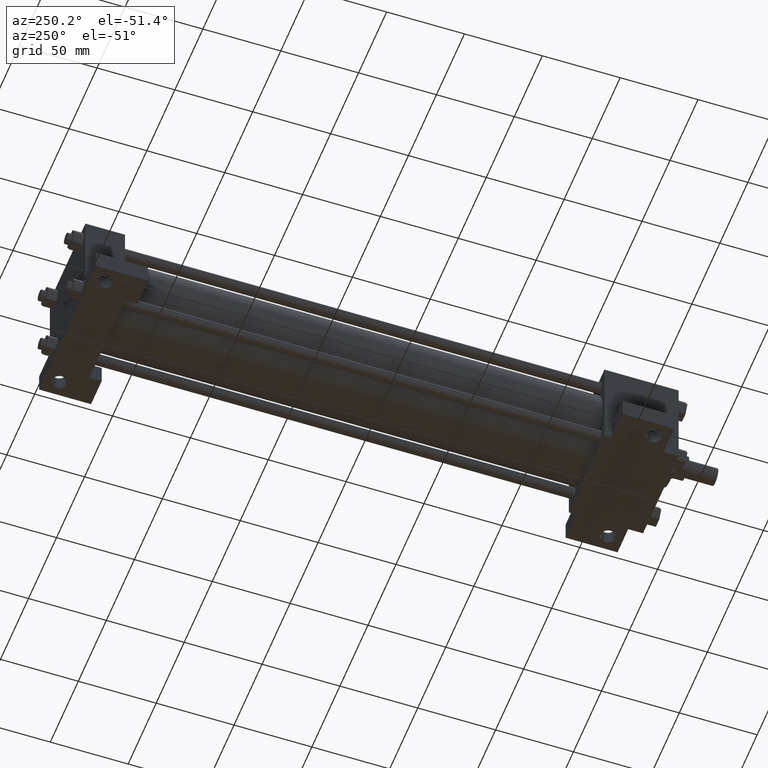
[diagram: clean part render]
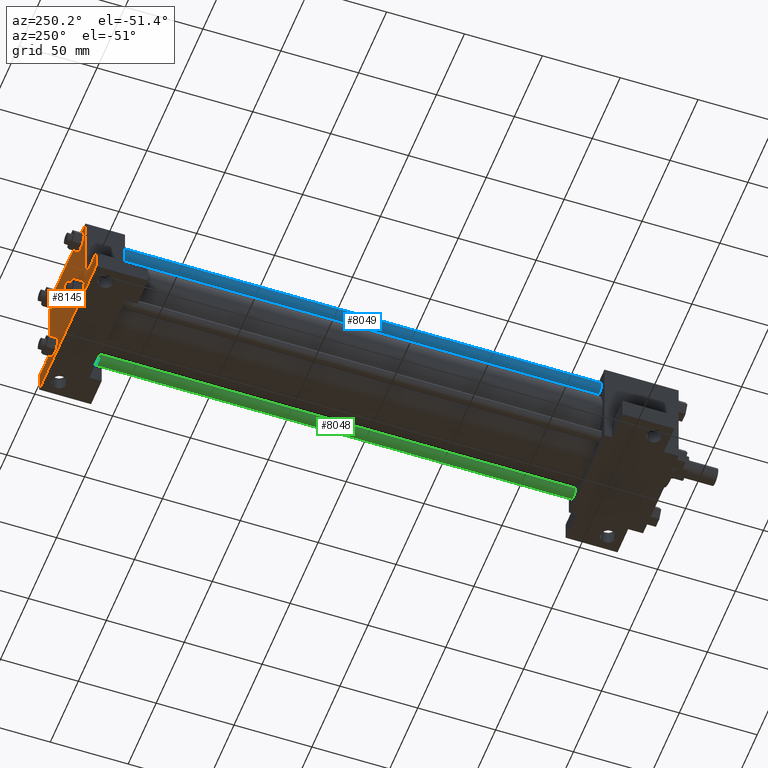
[diagram: same view with three faces highlighted in distinct colors, each labeled with its STEP entity id]
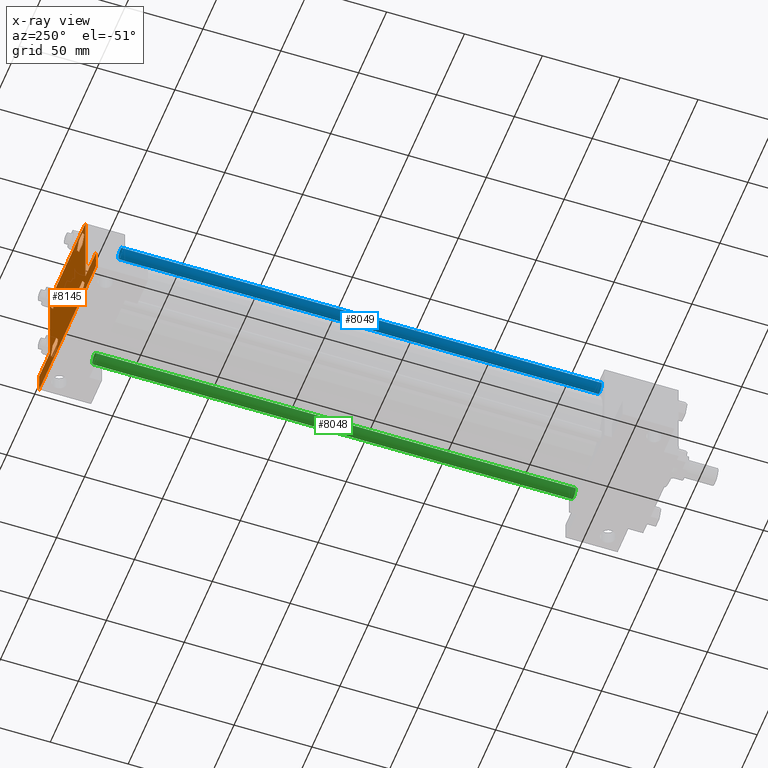
[diagram: x-ray of the same camera — body ghosted, the three highlighted faces saturated]
A machine part, auxiliary view with three faces highlighted in distinct colors.
The next image is the same camera in x-ray (body ghosted, the three faces saturated) — at least one of them is partly hidden behind the body in this view.
Their STEP definitions:

[orange] entity #8145 — the highlighted planar face has unit normal (0, -1, 0).
#4760=VERTEX_POINT('',#4761);
#4761=CARTESIAN_POINT('',(-2.016009347E+001,3.968750000E+002,-1.781175426E+001));
#4762=EDGE_CURVE('',#4767,#4760,#4763,.T.);
#4763=LINE('',#4764,#4765);
#4764=CARTESIAN_POINT('',(-1.695219677E+001,3.968750000E+002,-2.336800000E+001));
#4765=VECTOR('',#4766,1.0E+000);
#4766=DIRECTION('',(-5.01129111258307E-001,0.0E+000,
   8.65372528943148E-001));
#4767=VERTEX_POINT('',#4768);
#4768=CARTESIAN_POINT('',(-1.695219677E+001,3.968750000E+002,-2.336800000E+001));
#4792=EDGE_CURVE('',#4797,#4767,#4793,.T.);
#4793=LINE('',#4794,#4795);
#4794=CARTESIAN_POINT('',(-2.016009347E+001,3.968750000E+002,-2.892424574E+001));
#4795=VECTOR('',#4796,1.0E+000);
#4796=DIRECTION('',(5.01129111258308E-001,0.0E+000,8.65372528943147E-001));
#4797=VERTEX_POINT('',#4798);
#4798=CARTESIAN_POINT('',(-2.016009347E+001,3.968750000E+002,-2.892424574E+001));
#4822=EDGE_CURVE('',#4827,#4797,#4823,.T.);
#4823=LINE('',#4824,#4825);
#4824=CARTESIAN_POINT('',(-2.657590653E+001,3.968750000E+002,-2.892424574E+001));
#4825=VECTOR('',#4826,1.0E+000);
#4826=DIRECTION('',(1.0E+000,0.0E+000,0.0E+000));
#4827=VERTEX_POINT('',#4828);
#4828=CARTESIAN_POINT('',(-2.657590653E+001,3.968750000E+002,-2.892424574E+001));
#4852=EDGE_CURVE('',#4857,#4827,#4853,.T.);
#4853=LINE('',#4854,#4855);
#4854=CARTESIAN_POINT('',(-2.978380323E+001,3.968750000E+002,-2.336800000E+001));
#4855=VECTOR('',#4856,1.0E+000);
#4856=DIRECTION('',(5.01129111258307E-001,0.0E+000,
   -8.65372528943148E-001));
#4857=VERTEX_POINT('',#4858);
#4858=CARTESIAN_POINT('',(-2.978380323E+001,3.968750000E+002,-2.336800000E+001));
#4882=EDGE_CURVE('',#4887,#4857,#4883,.T.);
#4883=LINE('',#4884,#4885);
#4884=CARTESIAN_POINT('',(-2.657590653E+001,3.968750000E+002,-1.781175426E+001));
#4885=VECTOR('',#4886,1.0E+000);
#4886=DIRECTION('',(-5.01129111258308E-001,0.0E+000,
   -8.65372528943147E-001));
#4887=VERTEX_POINT('',#4888);
#4888=CARTESIAN_POINT('',(-2.657590653E+001,3.968750000E+002,-1.781175426E+001));
#4910=EDGE_CURVE('',#4760,#4887,#4911,.T.);
#4911=LINE('',#4912,#4913);
#4912=CARTESIAN_POINT('',(-2.016009347E+001,3.968750000E+002,-1.781175426E+001));
#4913=VECTOR('',#4914,1.0E+000);
#4914=DIRECTION('',(-1.0E+000,0.0E+000,0.0E+000));
#4991=VERTEX_POINT('',#4992);
#4992=CARTESIAN_POINT('',(-2.657590653E+001,3.968750000E+002,1.781175426E+001));
#4993=EDGE_CURVE('',#4998,#4991,#4994,.T.);
#4994=LINE('',#4995,#4996);
#4995=CARTESIAN_POINT('',(-2.978380323E+001,3.968750000E+002,2.336800000E+001));
#4996=VECTOR('',#4997,1.0E+000);
#4997=DIRECTION('',(5.01129111258307E-001,0.0E+000,
   -8.65372528943148E-001));
#4998=VERTEX_POINT('',#4999);
#4999=CARTESIAN_POINT('',(-2.978380323E+001,3.968750000E+002,2.336800000E+001));
#5023=EDGE_CURVE('',#5028,#4998,#5024,.T.);
#5024=LINE('',#5025,#5026);
#5025=CARTESIAN_POINT('',(-2.657590653E+001,3.968750000E+002,2.892424574E+001));
#5026=VECTOR('',#5027,1.0E+000);
#5027=DIRECTION('',(-5.01129111258308E-001,0.0E+000,
   -8.65372528943147E-001));
#5028=VERTEX_POINT('',#5029);
#5029=CARTESIAN_POINT('',(-2.657590653E+001,3.968750000E+002,2.892424574E+001));
#5053=EDGE_CURVE('',#5058,#5028,#5054,.T.);
#5054=LINE('',#5055,#5056);
#5055=CARTESIAN_POINT('',(-2.016009347E+001,3.968750000E+002,2.892424574E+001));
#5056=VECTOR('',#5057,1.0E+000);
#5057=DIRECTION('',(-1.0E+000,0.0E+000,0.0E+000));
#5058=VERTEX_POINT('',#5059);
#5059=CARTESIAN_POINT('',(-2.016009347E+001,3.968750000E+002,2.892424574E+001));
#5083=EDGE_CURVE('',#5088,#5058,#5084,.T.);
#5084=LINE('',#5085,#5086);
#5085=CARTESIAN_POINT('',(-1.695219677E+001,3.968750000E+002,2.336800000E+001));
#5086=VECTOR('',#5087,1.0E+000);
#5087=DIRECTION('',(-5.01129111258307E-001,0.0E+000,
   8.65372528943148E-001));
#5088=VERTEX_POINT('',#5089);
#5089=CARTESIAN_POINT('',(-1.695219677E+001,3.968750000E+002,2.336800000E+001));
#5113=EDGE_CURVE('',#5118,#5088,#5114,.T.);
#5114=LINE('',#5115,#5116);
#5115=CARTESIAN_POINT('',(-2.016009347E+001,3.968750000E+002,1.781175426E+001));
#5116=VECTOR('',#5117,1.0E+000);
#5117=DIRECTION('',(5.01129111258308E-001,0.0E+000,8.65372528943147E-001));
#5118=VERTEX_POINT('',#5119);
#5119=CARTESIAN_POINT('',(-2.016009347E+001,3.968750000E+002,1.781175426E+001));
#5141=EDGE_CURVE('',#4991,#5118,#5142,.T.);
#5142=LINE('',#5143,#5144);
#5143=CARTESIAN_POINT('',(-2.657590653E+001,3.968750000E+002,1.781175426E+001));
#5144=VECTOR('',#5145,1.0E+000);
#5145=DIRECTION('',(1.0E+000,0.0E+000,0.0E+000));
#5222=VERTEX_POINT('',#5223);
#5223=CARTESIAN_POINT('',(2.016009347E+001,3.968750000E+002,1.781175426E+001));
#5224=EDGE_CURVE('',#5229,#5222,#5225,.T.);
#5225=LINE('',#5226,#5227);
#5226=CARTESIAN_POINT('',(1.695219677E+001,3.968750000E+002,2.336800000E+001));
#5227=VECTOR('',#5228,1.0E+000);
#5228=DIRECTION('',(5.01129111258307E-001,0.0E+000,
   -8.65372528943148E-001));
#5229=VERTEX_POINT('',#5230);
#5230=CARTESIAN_POINT('',(1.695219677E+001,3.968750000E+002,2.336800000E+001));
#5254=EDGE_CURVE('',#5259,#5229,#5255,.T.);
#5255=LINE('',#5256,#5257);
#5256=CARTESIAN_POINT('',(2.016009347E+001,3.968750000E+002,2.892424574E+001));
#5257=VECTOR('',#5258,1.0E+000);
#5258=DIRECTION('',(-5.01129111258308E-001,0.0E+000,
   -8.65372528943147E-001));
#5259=VERTEX_POINT('',#5260);
#5260=CARTESIAN_POINT('',(2.016009347E+001,3.968750000E+002,2.892424574E+001));
#5284=EDGE_CURVE('',#5289,#5259,#5285,.T.);
#5285=LINE('',#5286,#5287);
#5286=CARTESIAN_POINT('',(2.657590653E+001,3.968750000E+002,2.892424574E+001));
#5287=VECTOR('',#5288,1.0E+000);
#5288=DIRECTION('',(-1.0E+000,0.0E+000,0.0E+000));
#5289=VERTEX_POINT('',#5290);
#5290=CARTESIAN_POINT('',(2.657590653E+001,3.968750000E+002,2.892424574E+001));
#5314=EDGE_CURVE('',#5319,#5289,#5315,.T.);
#5315=LINE('',#5316,#5317);
#5316=CARTESIAN_POINT('',(2.978380323E+001,3.968750000E+002,2.336800000E+001));
#5317=VECTOR('',#5318,1.0E+000);
#5318=DIRECTION('',(-5.01129111258307E-001,0.0E+000,
   8.65372528943148E-001));
#5319=VERTEX_POINT('',#5320);
#5320=CARTESIAN_POINT('',(2.978380323E+001,3.968750000E+002,2.336800000E+001));
#5344=EDGE_CURVE('',#5349,#5319,#5345,.T.);
#5345=LINE('',#5346,#5347);
#5346=CARTESIAN_POINT('',(2.657590653E+001,3.968750000E+002,1.781175426E+001));
#5347=VECTOR('',#5348,1.0E+000);
#5348=DIRECTION('',(5.01129111258308E-001,0.0E+000,8.65372528943147E-001));
#5349=VERTEX_POINT('',#5350);
#5350=CARTESIAN_POINT('',(2.657590653E+001,3.968750000E+002,1.781175426E+001));
#5372=EDGE_CURVE('',#5222,#5349,#5373,.T.);
#5373=LINE('',#5374,#5375);
#5374=CARTESIAN_POINT('',(2.016009347E+001,3.968750000E+002,1.781175426E+001));
#5375=VECTOR('',#5376,1.0E+000);
#5376=DIRECTION('',(1.0E+000,0.0E+000,0.0E+000));
#5453=VERTEX_POINT('',#5454);
#5454=CARTESIAN_POINT('',(2.657590653E+001,3.968750000E+002,-1.781175426E+001));
#5455=EDGE_CURVE('',#5460,#5453,#5456,.T.);
#5456=LINE('',#5457,#5458);
#5457=CARTESIAN_POINT('',(2.978380323E+001,3.968750000E+002,-2.336800000E+001));
#5458=VECTOR('',#5459,1.0E+000);
#5459=DIRECTION('',(-5.01129111258307E-001,0.0E+000,
   8.65372528943148E-001));
#5460=VERTEX_POINT('',#5461);
#5461=CARTESIAN_POINT('',(2.978380323E+001,3.968750000E+002,-2.336800000E+001));
#5485=EDGE_CURVE('',#5490,#5460,#5486,.T.);
#5486=LINE('',#5487,#5488);
#5487=CARTESIAN_POINT('',(2.657590653E+001,3.968750000E+002,-2.892424574E+001));
#5488=VECTOR('',#5489,1.0E+000);
#5489=DIRECTION('',(5.01129111258308E-001,0.0E+000,8.65372528943147E-001));
#5490=VERTEX_POINT('',#5491);
#5491=CARTESIAN_POINT('',(2.657590653E+001,3.968750000E+002,-2.892424574E+001));
#5515=EDGE_CURVE('',#5520,#5490,#5516,.T.);
#5516=LINE('',#5517,#5518);
#5517=CARTESIAN_POINT('',(2.016009347E+001,3.968750000E+002,-2.892424574E+001));
#5518=VECTOR('',#5519,1.0E+000);
#5519=DIRECTION('',(1.0E+000,0.0E+000,0.0E+000));
#5520=VERTEX_POINT('',#5521);
#5521=CARTESIAN_POINT('',(2.016009347E+001,3.968750000E+002,-2.892424574E+001));
#5545=EDGE_CURVE('',#5550,#5520,#5546,.T.);
#5546=LINE('',#5547,#5548);
#5547=CARTESIAN_POINT('',(1.695219677E+001,3.968750000E+002,-2.336800000E+001));
#5548=VECTOR('',#5549,1.0E+000);
#5549=DIRECTION('',(5.01129111258307E-001,0.0E+000,
   -8.65372528943148E-001));
#5550=VERTEX_POINT('',#5551);
#5551=CARTESIAN_POINT('',(1.695219677E+001,3.968750000E+002,-2.336800000E+001));
#5575=EDGE_CURVE('',#5580,#5550,#5576,.T.);
#5576=LINE('',#5577,#5578);
#5577=CARTESIAN_POINT('',(2.016009347E+001,3.968750000E+002,-1.781175426E+001));
#5578=VECTOR('',#5579,1.0E+000);
#5579=DIRECTION('',(-5.01129111258308E-001,0.0E+000,
   -8.65372528943147E-001));
#5580=VERTEX_POINT('',#5581);
#5581=CARTESIAN_POINT('',(2.016009347E+001,3.968750000E+002,-1.781175426E+001));
#5603=EDGE_CURVE('',#5453,#5580,#5604,.T.);
#5604=LINE('',#5605,#5606);
#5605=CARTESIAN_POINT('',(2.657590653E+001,3.968750000E+002,-1.781175426E+001));
#5606=VECTOR('',#5607,1.0E+000);
#5607=DIRECTION('',(-1.0E+000,0.0E+000,0.0E+000));
#6047=VERTEX_POINT('',#6048);
#6048=CARTESIAN_POINT('',(-5.080000000E+001,3.968750000E+002,-3.175000000E+001));
#6049=EDGE_CURVE('',#6054,#6047,#6050,.T.);
#6050=LINE('',#6051,#6052);
#6051=CARTESIAN_POINT('',(3.175000000E+001,3.968750000E+002,-3.175000000E+001));
#6052=VECTOR('',#6053,1.0E+000);
#6053=DIRECTION('',(-1.0E+000,0.0E+000,0.0E+000));
#6054=VERTEX_POINT('',#6055);
#6055=CARTESIAN_POINT('',(5.080000000E+001,3.968750000E+002,-3.175000000E+001));
#6098=VERTEX_POINT('',#6100);
#6100=CARTESIAN_POINT('',(3.175000000E+001,3.968750000E+002,-1.905000000E+001));
#6117=VERTEX_POINT('',#6118);
#6118=CARTESIAN_POINT('',(5.080000000E+001,3.968750000E+002,-1.905000000E+001));
#6119=EDGE_CURVE('',#6117,#6098,#6120,.T.);
#6120=LINE('',#6121,#6122);
#6121=CARTESIAN_POINT('',(5.080000000E+001,3.968750000E+002,-1.905000000E+001));
#6122=VECTOR('',#6123,1.0E+000);
#6123=DIRECTION('',(-1.0E+000,0.0E+000,0.0E+000));
#6140=EDGE_CURVE('',#6117,#6054,#6141,.T.);
#6141=LINE('',#6142,#6143);
#6142=CARTESIAN_POINT('',(5.080000000E+001,3.968750000E+002,-1.905000000E+001));
#6143=VECTOR('',#6144,1.0E+000);
#6144=DIRECTION('',(0.0E+000,0.0E+000,-1.0E+000));
#6197=VERTEX_POINT('',#6199);
#6199=CARTESIAN_POINT('',(-3.175000000E+001,3.968750000E+002,-1.905000000E+001));
#6201=EDGE_CURVE('',#6206,#6197,#6202,.T.);
#6202=LINE('',#6203,#6204);
#6203=CARTESIAN_POINT('',(-5.080000000E+001,3.968750000E+002,-1.905000000E+001));
#6204=VECTOR('',#6205,1.0E+000);
#6205=DIRECTION('',(1.0E+000,0.0E+000,0.0E+000));
#6206=VERTEX_POINT('',#6207);
#6207=CARTESIAN_POINT('',(-5.080000000E+001,3.968750000E+002,-1.905000000E+001));
#6239=EDGE_CURVE('',#6206,#6047,#6240,.T.);
#6240=LINE('',#6241,#6242);
#6241=CARTESIAN_POINT('',(-5.080000000E+001,3.968750000E+002,-1.905000000E+001));
#6242=VECTOR('',#6243,1.0E+000);
#6243=DIRECTION('',(0.0E+000,0.0E+000,-1.0E+000));
#6281=FACE_OUTER_BOUND('',#6286,.T.);
#6282=FACE_BOUND('',#6287,.T.);
#6283=FACE_BOUND('',#6288,.T.);
#6284=FACE_BOUND('',#6289,.T.);
#6285=FACE_BOUND('',#6290,.T.);
#6286=EDGE_LOOP('',(#6291,#6292,#6293,#6294,#6295,#6296));
#6287=EDGE_LOOP('',(#6297,#6298,#6299,#6300,#6301,#6302));
#6288=EDGE_LOOP('',(#6303,#6304,#6305,#6306,#6307,#6308));
#6289=EDGE_LOOP('',(#6309,#6310,#6311,#6312,#6313,#6314));
#6290=EDGE_LOOP('',(#6315,#6316,#6317,#6318,#6319,#6320,#6321,#6322));
#6291=ORIENTED_EDGE('',*,*,#4762,.T.);
#6292=ORIENTED_EDGE('',*,*,#4910,.T.);
#6293=ORIENTED_EDGE('',*,*,#4882,.T.);
#6294=ORIENTED_EDGE('',*,*,#4852,.T.);
#6295=ORIENTED_EDGE('',*,*,#4822,.T.);
#6296=ORIENTED_EDGE('',*,*,#4792,.T.);
#6297=ORIENTED_EDGE('',*,*,#4993,.T.);
#6298=ORIENTED_EDGE('',*,*,#5141,.T.);
#6299=ORIENTED_EDGE('',*,*,#5113,.T.);
#6300=ORIENTED_EDGE('',*,*,#5083,.T.);
#6301=ORIENTED_EDGE('',*,*,#5053,.T.);
#6302=ORIENTED_EDGE('',*,*,#5023,.T.);
#6303=ORIENTED_EDGE('',*,*,#5224,.T.);
#6304=ORIENTED_EDGE('',*,*,#5372,.T.);
#6305=ORIENTED_EDGE('',*,*,#5344,.T.);
#6306=ORIENTED_EDGE('',*,*,#5314,.T.);
#6307=ORIENTED_EDGE('',*,*,#5284,.T.);
#6308=ORIENTED_EDGE('',*,*,#5254,.T.);
#6309=ORIENTED_EDGE('',*,*,#5455,.T.);
#6310=ORIENTED_EDGE('',*,*,#5603,.T.);
#6311=ORIENTED_EDGE('',*,*,#5575,.T.);
#6312=ORIENTED_EDGE('',*,*,#5545,.T.);
#6313=ORIENTED_EDGE('',*,*,#5515,.T.);
#6314=ORIENTED_EDGE('',*,*,#5485,.T.);
#6315=ORIENTED_EDGE('',*,*,#6140,.T.);
#6316=ORIENTED_EDGE('',*,*,#6049,.T.);
#6317=ORIENTED_EDGE('',*,*,#6239,.F.);
#6318=ORIENTED_EDGE('',*,*,#6201,.T.);
#6319=ORIENTED_EDGE('',*,*,#6323,.F.);
#6320=ORIENTED_EDGE('',*,*,#6330,.F.);
#6321=ORIENTED_EDGE('',*,*,#6337,.F.);
#6322=ORIENTED_EDGE('',*,*,#6119,.F.);
#6323=EDGE_CURVE('',#6328,#6197,#6324,.T.);
#6324=LINE('',#6325,#6326);
#6325=CARTESIAN_POINT('',(-3.175000000E+001,3.968750000E+002,3.175000000E+001));
#6326=VECTOR('',#6327,1.0E+000);
#6327=DIRECTION('',(0.0E+000,0.0E+000,-1.0E+000));
#6328=VERTEX_POINT('',#6329);
#6329=CARTESIAN_POINT('',(-3.175000000E+001,3.968750000E+002,3.175000000E+001));
#6330=EDGE_CURVE('',#6335,#6328,#6331,.T.);
#6331=LINE('',#6332,#6333);
#6332=CARTESIAN_POINT('',(3.175000000E+001,3.968750000E+002,3.175000000E+001));
#6333=VECTOR('',#6334,1.0E+000);
#6334=DIRECTION('',(-1.0E+000,0.0E+000,0.0E+000));
#6335=VERTEX_POINT('',#6336);
#6336=CARTESIAN_POINT('',(3.175000000E+001,3.968750000E+002,3.175000000E+001));
#6337=EDGE_CURVE('',#6098,#6335,#6338,.T.);
#6338=LINE('',#6339,#6340);
#6339=CARTESIAN_POINT('',(3.175000000E+001,3.968750000E+002,-3.175000000E+001));
#6340=VECTOR('',#6341,1.0E+000);
#6341=DIRECTION('',(0.0E+000,0.0E+000,1.0E+000));
#6342=PLANE('',#6343);
#6343=AXIS2_PLACEMENT_3D('',#6344,#6345,#6346);
#6344=CARTESIAN_POINT('',(3.175000000E+001,3.968750000E+002,-3.175000000E+001));
#6345=DIRECTION('',(0.0E+000,-1.0E+000,0.0E+000));
#6346=DIRECTION('',(0.0E+000,0.0E+000,-1.0E+000));
#8145=ADVANCED_FACE('',(#6281,#6282,#6283,#6284,#6285),#6342,.F.);

[blue] entity #8049 — the highlighted cylindrical surface (bore or boss wall) has radius 3.5687 mm, axis along (0, -1, 0).
#509=EDGE_CURVE('',#515,#515,#510,.T.);
#510=CIRCLE('',#511,3.568700000E+000);
#511=AXIS2_PLACEMENT_3D('',#512,#513,#514);
#512=CARTESIAN_POINT('',(-2.336800000E+001,6.350000000E+001,2.336800000E+001));
#513=DIRECTION('',(0.0E+000,1.0E+000,0.0E+000));
#514=DIRECTION('',(-1.0E+000,0.0E+000,0.0E+000));
#515=VERTEX_POINT('',#516);
#516=CARTESIAN_POINT('',(-2.693670000E+001,6.350000000E+001,2.336800000E+001));
#2833=FACE_OUTER_BOUND('',#2835,.T.);
#2834=FACE_BOUND('',#2836,.T.);
#2835=EDGE_LOOP('',(#2837));
#2836=EDGE_LOOP('',(#2838));
#2837=ORIENTED_EDGE('',*,*,#2892,.F.);
#2838=ORIENTED_EDGE('',*,*,#509,.T.);
#2839=CYLINDRICAL_SURFACE('',#2840,3.568700000E+000);
#2840=AXIS2_PLACEMENT_3D('',#2841,#2842,#2843);
#2841=CARTESIAN_POINT('',(-2.336800000E+001,3.714750000E+002,2.336800000E+001));
#2842=DIRECTION('',(0.0E+000,-1.0E+000,0.0E+000));
#2843=DIRECTION('',(0.0E+000,0.0E+000,-1.0E+000));
#2892=EDGE_CURVE('',#2898,#2898,#2893,.T.);
#2893=CIRCLE('',#2894,3.568700000E+000);
#2894=AXIS2_PLACEMENT_3D('',#2895,#2896,#2897);
#2895=CARTESIAN_POINT('',(-2.336800000E+001,3.714750000E+002,2.336800000E+001));
#2896=DIRECTION('',(0.0E+000,1.0E+000,0.0E+000));
#2897=DIRECTION('',(1.0E+000,0.0E+000,0.0E+000));
#2898=VERTEX_POINT('',#2899);
#2899=CARTESIAN_POINT('',(-1.979930000E+001,3.714750000E+002,2.336800000E+001));
#8049=ADVANCED_FACE('',(#2833,#2834),#2839,.T.);

[green] entity #8048 — the highlighted cylindrical surface (bore or boss wall) has radius 3.5687 mm, axis along (0, -1, 0).
#455=EDGE_CURVE('',#461,#461,#456,.T.);
#456=CIRCLE('',#457,3.568700000E+000);
#457=AXIS2_PLACEMENT_3D('',#458,#459,#460);
#458=CARTESIAN_POINT('',(2.336800000E+001,6.350000000E+001,-2.336800000E+001));
#459=DIRECTION('',(0.0E+000,1.0E+000,0.0E+000));
#460=DIRECTION('',(-1.0E+000,0.0E+000,0.0E+000));
#461=VERTEX_POINT('',#462);
#462=CARTESIAN_POINT('',(1.979930000E+001,6.350000000E+001,-2.336800000E+001));
#2822=FACE_OUTER_BOUND('',#2824,.T.);
#2823=FACE_BOUND('',#2825,.T.);
#2824=EDGE_LOOP('',(#2826));
#2825=EDGE_LOOP('',(#2827));
#2826=ORIENTED_EDGE('',*,*,#2876,.F.);
#2827=ORIENTED_EDGE('',*,*,#455,.T.);
#2828=CYLINDRICAL_SURFACE('',#2829,3.568700000E+000);
#2829=AXIS2_PLACEMENT_3D('',#2830,#2831,#2832);
#2830=CARTESIAN_POINT('',(2.336800000E+001,3.714750000E+002,-2.336800000E+001));
#2831=DIRECTION('',(0.0E+000,-1.0E+000,0.0E+000));
#2832=DIRECTION('',(0.0E+000,0.0E+000,-1.0E+000));
#2876=EDGE_CURVE('',#2882,#2882,#2877,.T.);
#2877=CIRCLE('',#2878,3.568700000E+000);
#2878=AXIS2_PLACEMENT_3D('',#2879,#2880,#2881);
#2879=CARTESIAN_POINT('',(2.336800000E+001,3.714750000E+002,-2.336800000E+001));
#2880=DIRECTION('',(0.0E+000,1.0E+000,0.0E+000));
#2881=DIRECTION('',(1.0E+000,0.0E+000,0.0E+000));
#2882=VERTEX_POINT('',#2883);
#2883=CARTESIAN_POINT('',(2.693670000E+001,3.714750000E+002,-2.336800000E+001));
#8048=ADVANCED_FACE('',(#2822,#2823),#2828,.T.);